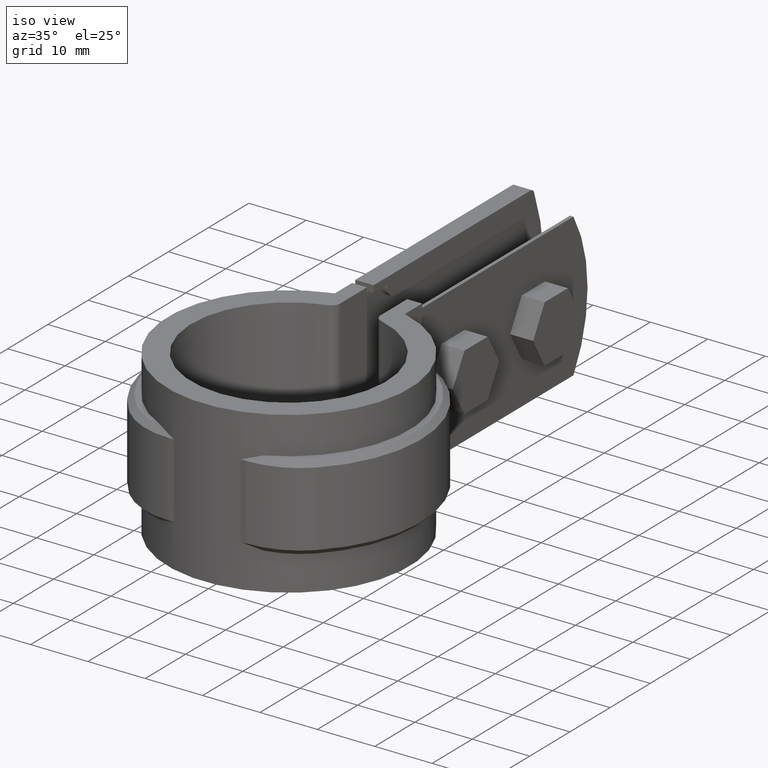
[diagram: clean part render]
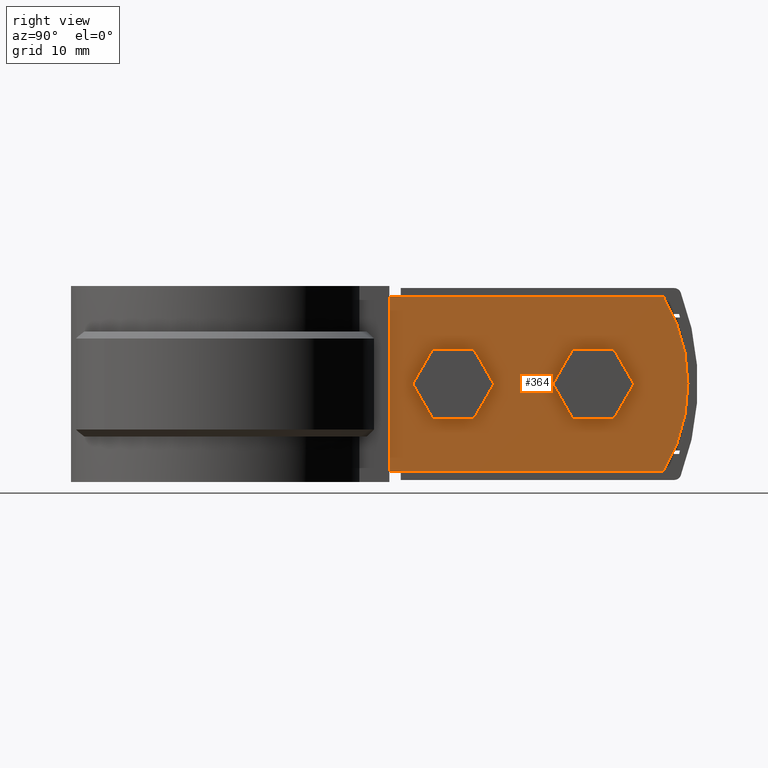
[diagram: tour spotlight — one face highlighted and labeled with its STEP entity id]
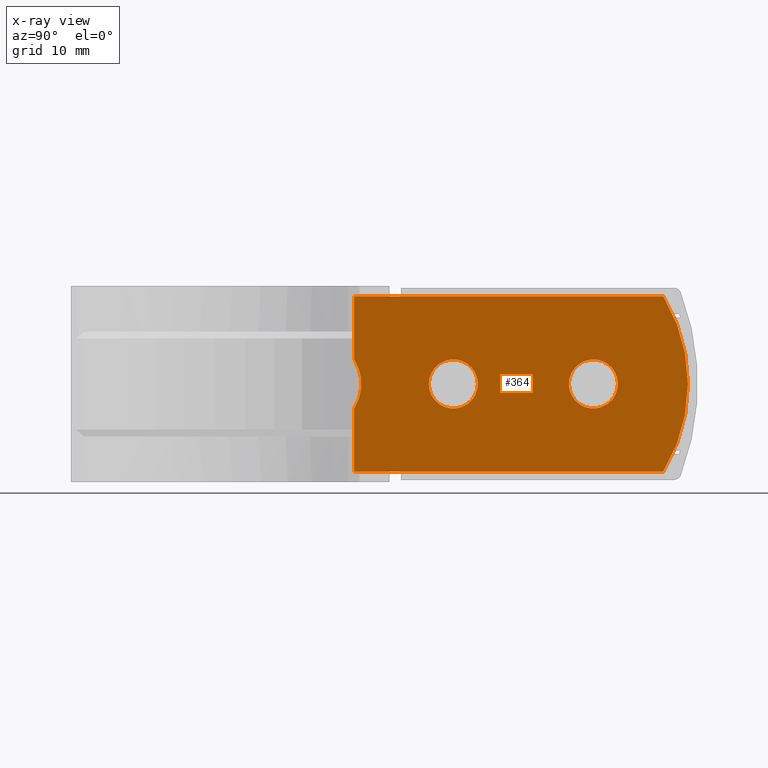
[diagram: x-ray of the same camera — body ghosted, this tour face saturated]
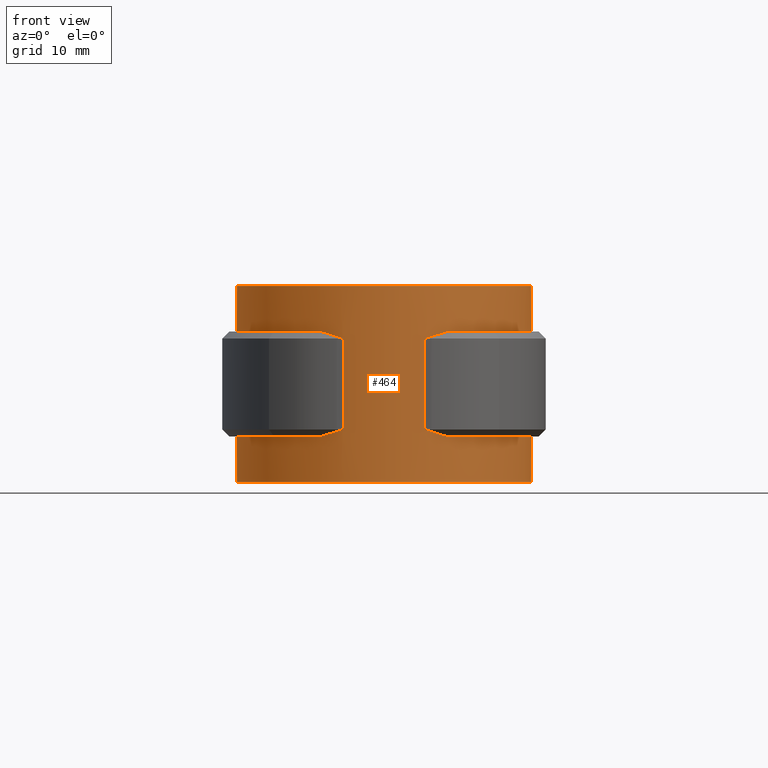
[diagram: tour spotlight — one face highlighted and labeled with its STEP entity id]
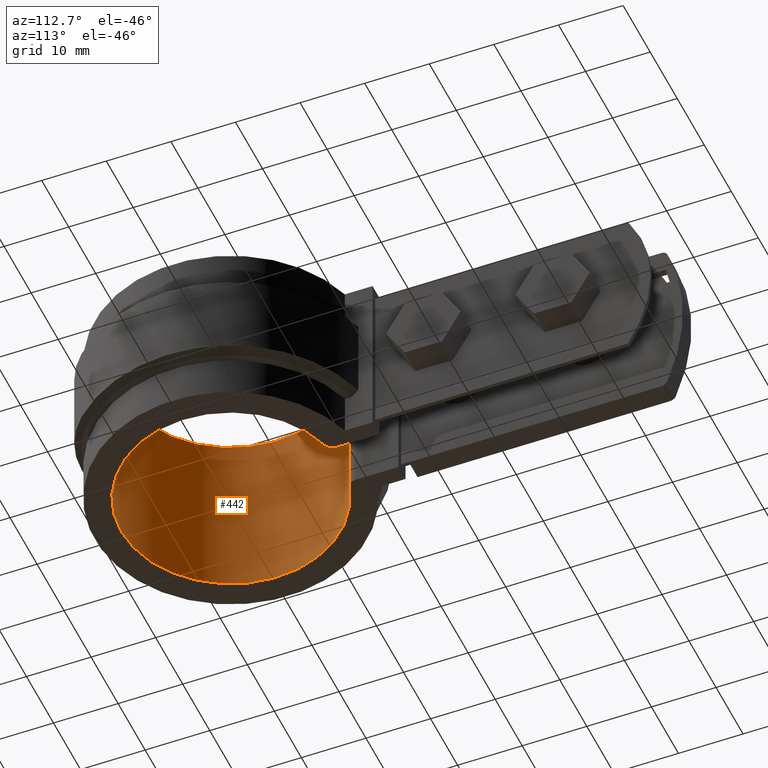
[diagram: tour spotlight — one face highlighted and labeled with its STEP entity id]
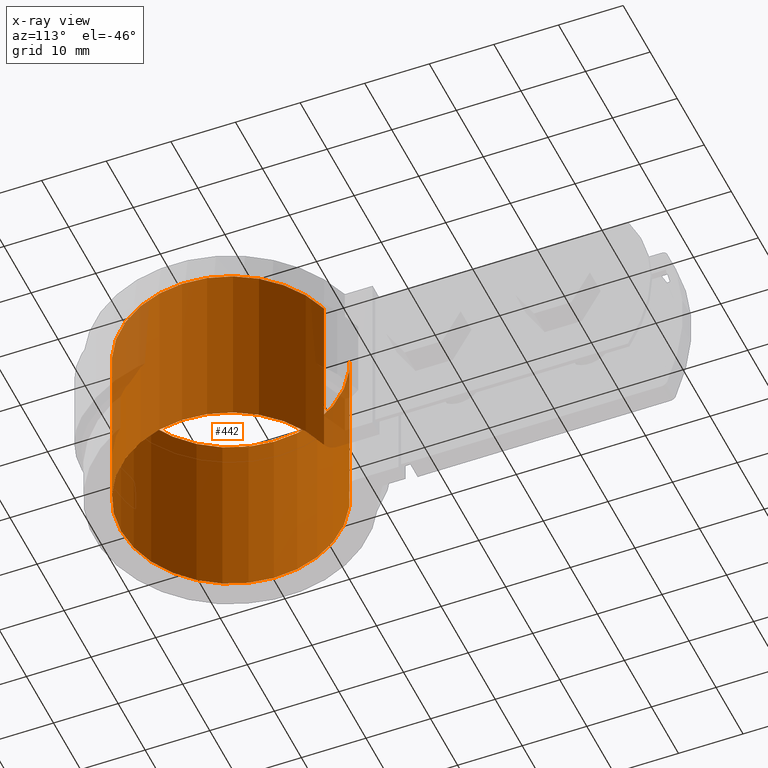
[diagram: x-ray of the same camera — body ghosted, this tour face saturated]
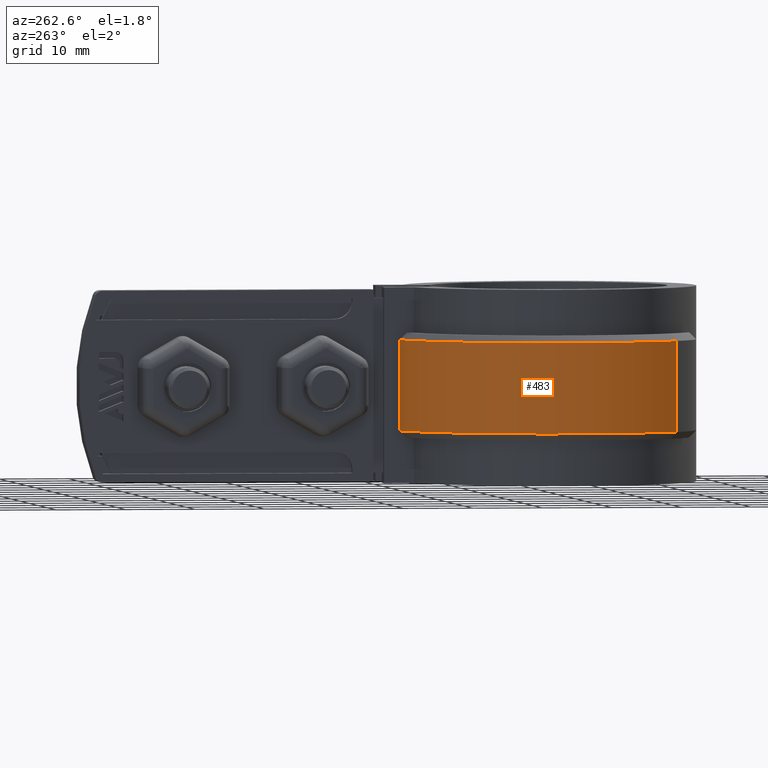
[diagram: tour spotlight — one face highlighted and labeled with its STEP entity id]
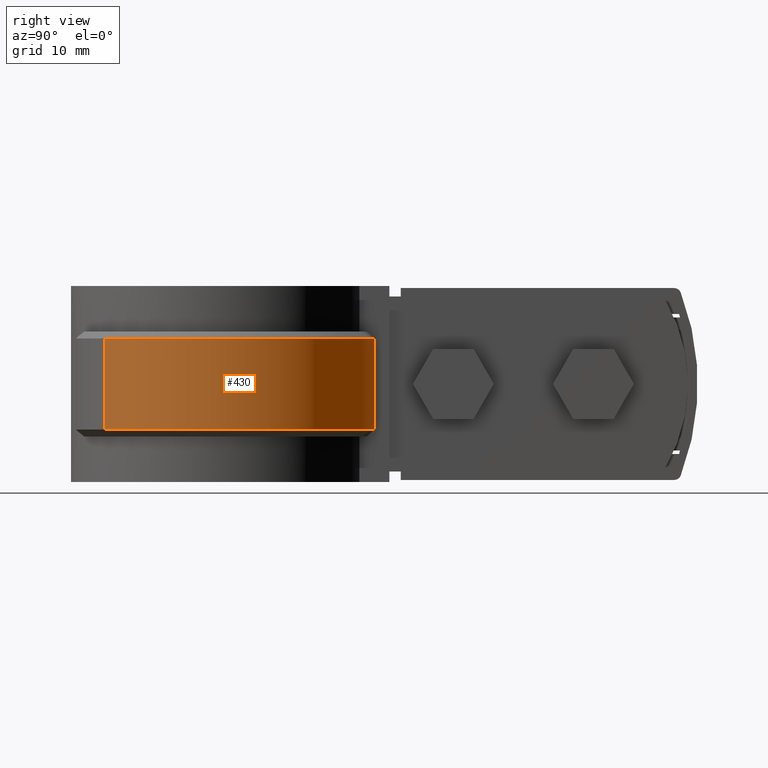
[diagram: tour spotlight — one face highlighted and labeled with its STEP entity id]
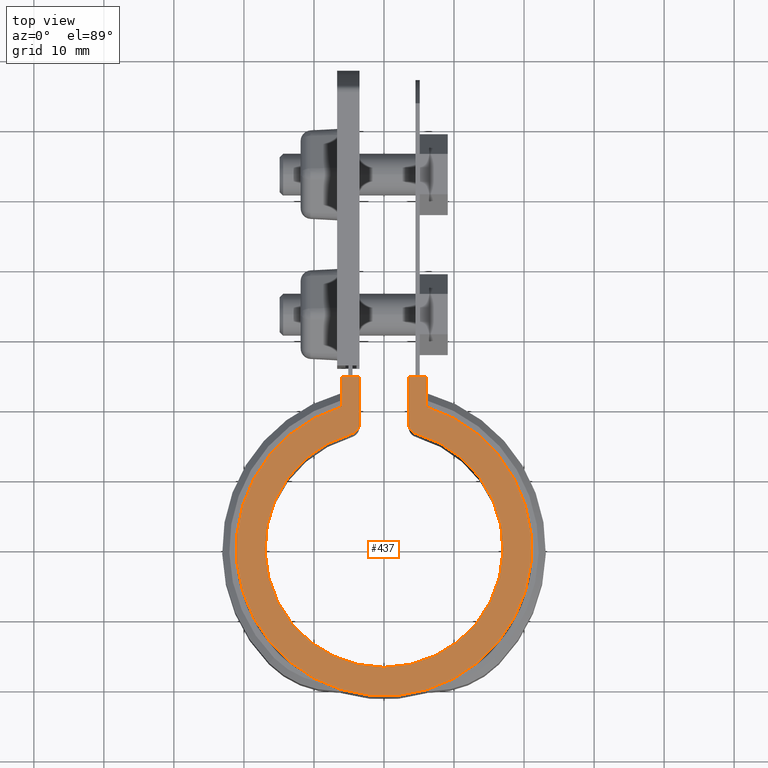
[diagram: tour spotlight — one face highlighted and labeled with its STEP entity id]
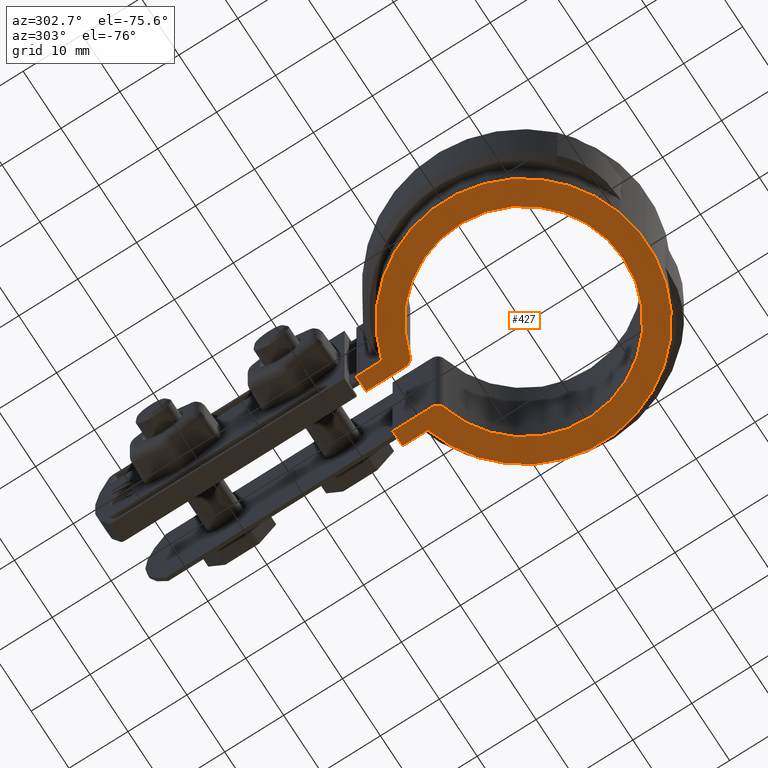
[diagram: tour spotlight — one face highlighted and labeled with its STEP entity id]
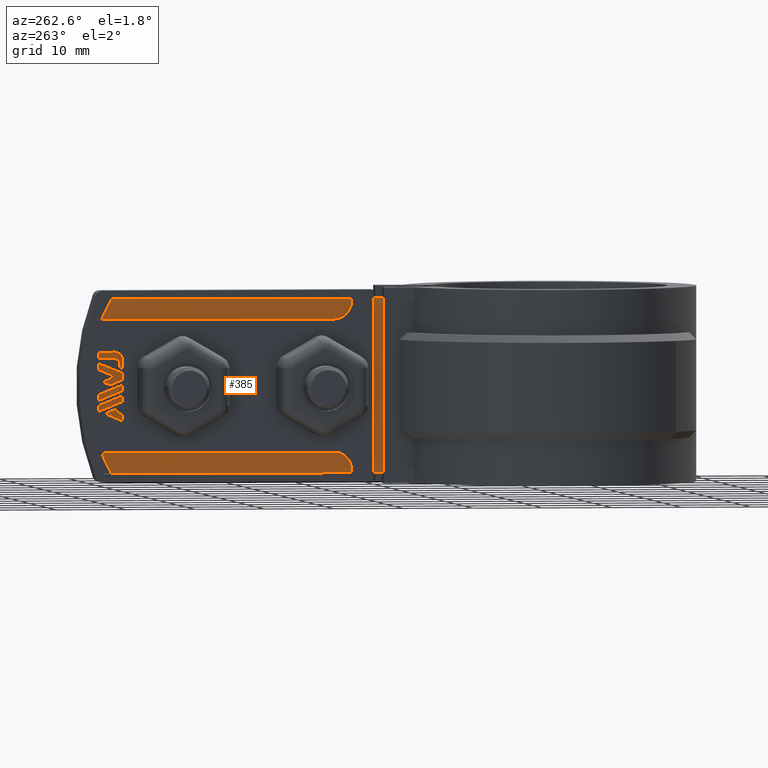
[diagram: tour spotlight — one face highlighted and labeled with its STEP entity id]
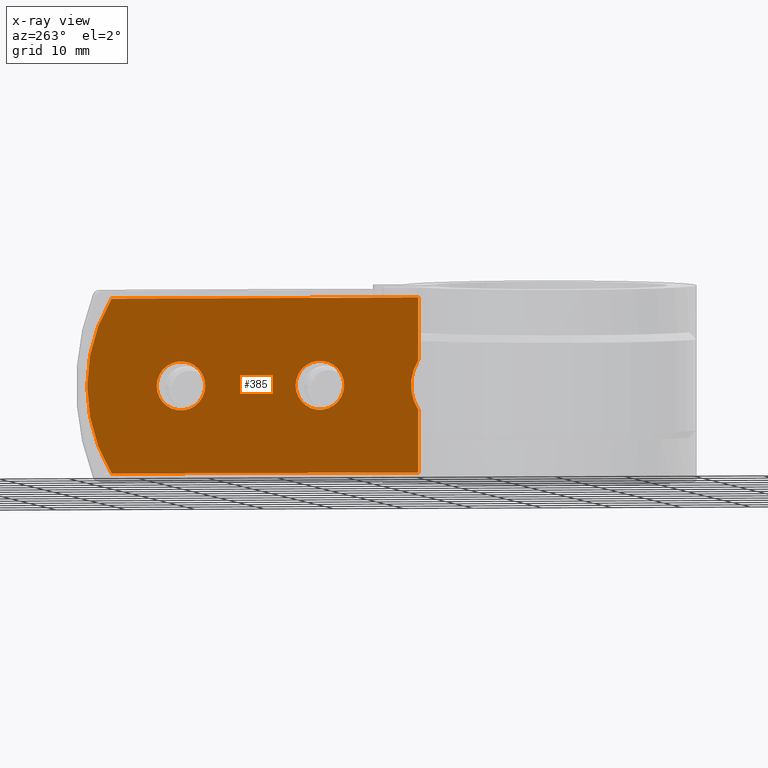
[diagram: x-ray of the same camera — body ghosted, this tour face saturated]
A machine part: a face-by-face anatomy tour. The part has 344 B-rep faces; the first image is the clean iso view, then the 8 largest visible faces are spotlighted one at a time (largest first), each with its STEP entity span.

Face 1 — right view, entity #364. An x-ray twin of the same camera follows (body ghosted, this face saturated) — the face is partly hidden behind the body. In plain terms, the highlighted planar face has unit normal (-1, 0, 0).
Definition (entity closure, byte-faithful):
#364 = ADVANCED_FACE( '', ( #710, #711, #712 ), #713, .F. );
#710 = FACE_OUTER_BOUND( '', #1450, .T. );
#711 = FACE_BOUND( '', #1451, .T. );
#712 = FACE_BOUND( '', #1452, .T. );
#713 = PLANE( '', #1453 );
#1450 = EDGE_LOOP( '', ( #2855, #2856, #2857, #2858, #2859, #2860 ) );
#1451 = EDGE_LOOP( '', ( #2861 ) );
#1452 = EDGE_LOOP( '', ( #2862 ) );
#1453 = AXIS2_PLACEMENT_3D( '', #2863, #2864, #2865 );
#2855 = ORIENTED_EDGE( '', *, *, #6604, .F. );
#2856 = ORIENTED_EDGE( '', *, *, #6605, .T. );
#2857 = ORIENTED_EDGE( '', *, *, #6606, .T. );
#2858 = ORIENTED_EDGE( '', *, *, #6607, .F. );
#2859 = ORIENTED_EDGE( '', *, *, #6608, .F. );
#2860 = ORIENTED_EDGE( '', *, *, #6609, .T. );
#2861 = ORIENTED_EDGE( '', *, *, #6610, .F. );
#2862 = ORIENTED_EDGE( '', *, *, #6611, .F. );
#2863 = CARTESIAN_POINT( '', ( 5.10000000000000, 19.4422220952236, 0.000000000000000 ) );
#2864 = DIRECTION( '', ( -1.00000000000000, 6.12303176911189E-017, 0.000000000000000 ) );
#2865 = DIRECTION( '', ( 0.000000000000000, 0.000000000000000, 1.00000000000000 ) );
#6604 = EDGE_CURVE( '', #7544, #7545, #7546, .T. );
#6605 = EDGE_CURVE( '', #7544, #7547, #7548, .T. );
#6606 = EDGE_CURVE( '', #7547, #7549, #7550, .T. );
#6607 = EDGE_CURVE( '', #7551, #7549, #7552, .T. );
#6608 = EDGE_CURVE( '', #7553, #7551, #7554, .F. );
#6609 = EDGE_CURVE( '', #7553, #7545, #7555, .T. );
#6610 = EDGE_CURVE( '', #7556, #7556, #7557, .F. );
#6611 = EDGE_CURVE( '', #7558, #7558, #7559, .F. );
#7544 = VERTEX_POINT( '', #9203 );
#7545 = VERTEX_POINT( '', #9204 );
#7546 = B_SPLINE_CURVE_WITH_KNOTS( '', 3, ( #9205, #9206, #9207, #9208, #9209, #9210, #9211, #9212, #9213, #9214, #9215, #9216, #9217, #9218, #9219, #9220 ), .UNSPECIFIED., .F., .F., ( 4, 2, 2, 2, 2, 2, 2, 4 ), ( 8.89289032550165E-017, 0.00184726520239946, 0.00277089780359915, 0.00369453040479884, 0.00461816300599853, 0.00554179560719821, 0.00646542820839790, 0.00738906080959759 ), .UNSPECIFIED. );
#7547 = VERTEX_POINT( '', #9221 );
#7548 = LINE( '', #9222, #9223 );
#7549 = VERTEX_POINT( '', #9224 );
#7550 = LINE( '', #9225, #9226 );
#7551 = VERTEX_POINT( '', #9227 );
#7552 = CIRCLE( '', #9228, 24.0000000000000 );
#7553 = VERTEX_POINT( '', #9229 );
#7554 = LINE( '', #9230, #9231 );
#7555 = LINE( '', #9232, #9233 );
#7556 = VERTEX_POINT( '', #9234 );
#7557 = CIRCLE( '', #9235, 3.50000000000000 );
#7558 = VERTEX_POINT( '', #9236 );
#7559 = CIRCLE( '', #9237, 3.50000000000000 );
#9203 = CARTESIAN_POINT( '', ( 5.09999999999961, 19.4422220952235, -16.0303286634312 ) );
#9204 = CARTESIAN_POINT( '', ( 5.10000000000000, 19.4422220952236, -8.96967133656906 ) );
#9205 = CARTESIAN_POINT( '', ( 5.10000000000000, 19.4422220952235, -16.0303286634310 ) );
#9206 = CARTESIAN_POINT( '', ( 5.10000000000000, 19.7801053416468, -15.5013357464436 ) );
#9207 = CARTESIAN_POINT( '', ( 5.10000000000003, 20.0328027913763, -14.9390013586115 ) );
#9208 = CARTESIAN_POINT( '', ( 5.10000000000003, 20.2940795166056, -14.0494051599813 ) );
#9209 = CARTESIAN_POINT( '', ( 5.10000000000001, 20.3614603303200, -13.7424787248678 ) );
#9210 = CARTESIAN_POINT( '', ( 5.10000000000000, 20.4512930233971, -13.1249243719470 ) );
#9211 = CARTESIAN_POINT( '', ( 5.09999999999998, 20.4739241329096, -12.8159474315860 ) );
#9212 = CARTESIAN_POINT( '', ( 5.09999999999998, 20.4745795553677, -12.1975936974691 ) );
#9213 = CARTESIAN_POINT( '', ( 5.10000000000000, 20.4525929326976, -11.8882168056869 ) );
#9214 = CARTESIAN_POINT( '', ( 5.10000000000000, 20.3637266687302, -11.2690606030455 ) );
#9215 = CARTESIAN_POINT( '', ( 5.10000000000001, 20.2971590065117, -10.9631409781846 ) );
#9216 = CARTESIAN_POINT( '', ( 5.10000000000001, 20.1236782689653, -10.3684305159894 ) );
#9217 = CARTESIAN_POINT( '', ( 5.10000000000000, 20.0165393108588, -10.0780053806239 ) );
#9218 = CARTESIAN_POINT( '', ( 5.10000000000000, 19.7606431259463, -9.51129425361363 ) );
#9219 = CARTESIAN_POINT( '', ( 5.10000000000000, 19.6111260462182, -9.23410881511582 ) );
#9220 = CARTESIAN_POINT( '', ( 5.10000000000000, 19.4422220952236, -8.96967133656907 ) );
#9221 = CARTESIAN_POINT( '', ( 5.10000000000000, 19.4422220952236, -25.0000000000000 ) );
#9222 = CARTESIAN_POINT( '', ( 5.10000000000000, 19.4422220952236, 0.000000000000000 ) );
#9223 = VECTOR( '', #12733, 1000.00000000000 );
#9224 = CARTESIAN_POINT( '', ( 5.10000000000000, 63.5921596934742, -25.0000000000000 ) );
#9225 = CARTESIAN_POINT( '', ( 5.10000000000000, 19.4422220952236, -25.0000000000000 ) );
#9226 = VECTOR( '', #12734, 1000.00000000000 );
#9227 = CARTESIAN_POINT( '', ( 5.10000000000000, 63.5921596934742, -1.08849965089404E-030 ) );
#9228 = AXIS2_PLACEMENT_3D( '', #12735, #12736, #12737 );
#9229 = CARTESIAN_POINT( '', ( 5.10000000000000, 19.4422220952236, 0.000000000000000 ) );
#9230 = CARTESIAN_POINT( '', ( 5.10000000000000, 19.4422220952236, 0.000000000000000 ) );
#9231 = VECTOR( '', #12738, 1000.00000000000 );
#9232 = CARTESIAN_POINT( '', ( 5.10000000000000, 19.4422220952236, 0.000000000000000 ) );
#9233 = VECTOR( '', #12739, 1000.00000000000 );
#9234 = CARTESIAN_POINT( '', ( 5.10000000000000, 50.1043584449263, -12.5000000000000 ) );
#9235 = AXIS2_PLACEMENT_3D( '', #12740, #12741, #12742 );
#9236 = CARTESIAN_POINT( '', ( 5.10000000000000, 30.1043584449263, -12.5000000000000 ) );
#9237 = AXIS2_PLACEMENT_3D( '', #12743, #12744, #12745 );
#12733 = DIRECTION( '', ( 0.000000000000000, 0.000000000000000, -1.00000000000000 ) );
#12734 = DIRECTION( '', ( 6.12303176911189E-017, 1.00000000000000, 0.000000000000000 ) );
#12735 = CARTESIAN_POINT( '', ( 5.09999999999999, 43.1043584449263, -12.5000000000000 ) );
#12736 = DIRECTION( '', ( -1.00000000000000, 6.12303176911189E-017, 0.000000000000000 ) );
#12737 = DIRECTION( '', ( -6.12303176911189E-017, -1.00000000000000, 0.000000000000000 ) );
#12738 = DIRECTION( '', ( -6.12303176911189E-017, -1.00000000000000, 0.000000000000000 ) );
#12739 = DIRECTION( '', ( 0.000000000000000, 0.000000000000000, -1.00000000000000 ) );
#12740 = CARTESIAN_POINT( '', ( 5.10000000000000, 53.6043584449263, -12.5000000000000 ) );
#12741 = DIRECTION( '', ( -1.00000000000000, 6.12303176911189E-017, 0.000000000000000 ) );
#12742 = DIRECTION( '', ( -6.12303176911189E-017, -1.00000000000000, 0.000000000000000 ) );
#12743 = CARTESIAN_POINT( '', ( 5.10000000000000, 33.6043584449263, -12.5000000000000 ) );
#12744 = DIRECTION( '', ( -1.00000000000000, 6.12303176911189E-017, 0.000000000000000 ) );
#12745 = DIRECTION( '', ( -6.12303176911189E-017, -1.00000000000000, 0.000000000000000 ) );

Face 2 — front view, entity #464. In plain terms, the highlighted cylindrical surface (partial cylindrical patch) has radius 21.095 mm, axis along (0, 0, -1).
Definition (entity closure, byte-faithful):
#464 = ADVANCED_FACE( '', ( #923 ), #924, .T. );
#923 = FACE_OUTER_BOUND( '', #1999, .T. );
#924 = CYLINDRICAL_SURFACE( '', #2000, 21.0950000000000 );
#1999 = EDGE_LOOP( '', ( #4397, #4398, #4399, #4400, #4401, #4402, #4403, #4404, #4405, #4406, #4407, #4408, #4409, #4410, #4411, #4412, #4413, #4414, #4415, #4416 ) );
#2000 = AXIS2_PLACEMENT_3D( '', #4417, #4418, #4419 );
#4397 = ORIENTED_EDGE( '', *, *, #6887, .F. );
#4398 = ORIENTED_EDGE( '', *, *, #6931, .T. );
#4399 = ORIENTED_EDGE( '', *, *, #6932, .T. );
#4400 = ORIENTED_EDGE( '', *, *, #6933, .F. );
#4401 = ORIENTED_EDGE( '', *, *, #6860, .T. );
#4402 = ORIENTED_EDGE( '', *, *, #6869, .T. );
#4403 = ORIENTED_EDGE( '', *, *, #6934, .T. );
#4404 = ORIENTED_EDGE( '', *, *, #6854, .F. );
#4405 = ORIENTED_EDGE( '', *, *, #6830, .T. );
#4406 = ORIENTED_EDGE( '', *, *, #6862, .T. );
#4407 = ORIENTED_EDGE( '', *, *, #6790, .F. );
#4408 = ORIENTED_EDGE( '', *, *, #6797, .T. );
#4409 = ORIENTED_EDGE( '', *, *, #6920, .T. );
#4410 = ORIENTED_EDGE( '', *, *, #6800, .T. );
#4411 = ORIENTED_EDGE( '', *, *, #6925, .T. );
#4412 = ORIENTED_EDGE( '', *, *, #6884, .T. );
#4413 = ORIENTED_EDGE( '', *, *, #6935, .T. );
#4414 = ORIENTED_EDGE( '', *, *, #6864, .T. );
#4415 = ORIENTED_EDGE( '', *, *, #6875, .F. );
#4416 = ORIENTED_EDGE( '', *, *, #6851, .F. );
#4417 = CARTESIAN_POINT( '', ( -4.33680868994202E-015, 0.000000000000000, -26.5000000000000 ) );
#4418 = DIRECTION( '', ( 0.000000000000000, 0.000000000000000, -1.00000000000000 ) );
#4419 = DIRECTION( '', ( -1.00000000000000, 6.50521303491303E-017, 0.000000000000000 ) );
#6790 = EDGE_CURVE( '', #7866, #7868, #7869, .T. );
#6797 = EDGE_CURVE( '', #7866, #7878, #7880, .T. );
#6800 = EDGE_CURVE( '', #7885, #7883, #7886, .T. );
#6830 = EDGE_CURVE( '', #7936, #7934, #7937, .T. );
#6851 = EDGE_CURVE( '', #7973, #7975, #7976, .T. );
#6854 = EDGE_CURVE( '', #7936, #7964, #7980, .T. );
#6860 = EDGE_CURVE( '', #7985, #7987, #7989, .F. );
#6862 = EDGE_CURVE( '', #7934, #7868, #7991, .T. );
#6864 = EDGE_CURVE( '', #7994, #7992, #7995, .T. );
#6869 = EDGE_CURVE( '', #7987, #8001, #8003, .T. );
#6875 = EDGE_CURVE( '', #7975, #7992, #8013, .T. );
#6884 = EDGE_CURVE( '', #8020, #8025, #8027, .T. );
#6887 = EDGE_CURVE( '', #8030, #7973, #8032, .T. );
#6920 = EDGE_CURVE( '', #7878, #7885, #8078, .F. );
#6925 = EDGE_CURVE( '', #7883, #8020, #8085, .T. );
#6931 = EDGE_CURVE( '', #8030, #8092, #8093, .T. );
#6932 = EDGE_CURVE( '', #8092, #8094, #8095, .T. );
#6933 = EDGE_CURVE( '', #7985, #8094, #8096, .T. );
#6934 = EDGE_CURVE( '', #8001, #7964, #8097, .T. );
#6935 = EDGE_CURVE( '', #8025, #7994, #8098, .T. );
#7866 = VERTEX_POINT( '', #10596 );
#7868 = VERTEX_POINT( '', #10598 );
#7869 = CIRCLE( '', #10599, 21.0950000000000 );
#7878 = VERTEX_POINT( '', #10611 );
#7880 = B_SPLINE_CURVE_WITH_KNOTS( '', 3, ( #10614, #10615, #10616, #10617 ), .UNSPECIFIED., .F., .F., ( 4, 4 ), ( 1.99304553643380E-017, 0.00253519593431982 ), .UNSPECIFIED. );
#7883 = VERTEX_POINT( '', #10621 );
#7885 = VERTEX_POINT( '', #10624 );
#7886 = LINE( '', #10625, #10626 );
#7934 = VERTEX_POINT( '', #10755 );
#7936 = VERTEX_POINT( '', #10758 );
#7937 = CIRCLE( '', #10759, 21.0950000000000 );
#7964 = VERTEX_POINT( '', #10800 );
#7973 = VERTEX_POINT( '', #10817 );
#7975 = VERTEX_POINT( '', #10820 );
#7976 = LINE( '', #10821, #10822 );
#7980 = LINE( '', #10828, #10829 );
#7985 = VERTEX_POINT( '', #10849 );
#7987 = VERTEX_POINT( '', #10852 );
#7989 = ELLIPSE( '', #10855, 29.8328350982604, 21.0950000000000 );
#7991 = LINE( '', #10860, #10861 );
#7992 = VERTEX_POINT( '', #10862 );
#7994 = VERTEX_POINT( '', #10865 );
#7995 = LINE( '', #10866, #10867 );
#8001 = VERTEX_POINT( '', #10878 );
#8003 = B_SPLINE_CURVE_WITH_KNOTS( '', 3, ( #10880, #10881, #10882, #10883 ), .UNSPECIFIED., .F., .F., ( 4, 4 ), ( 5.55382496713543E-018, 0.00253519593431982 ), .UNSPECIFIED. );
#8013 = CIRCLE( '', #10895, 21.0950000000000 );
#8020 = VERTEX_POINT( '', #10915 );
#8025 = VERTEX_POINT( '', #10922 );
#8027 = B_SPLINE_CURVE_WITH_KNOTS( '', 3, ( #10924, #10925, #10926, #10927 ), .UNSPECIFIED., .F., .F., ( 4, 4 ), ( 3.57622406134550E-018, 0.00253519593431980 ), .UNSPECIFIED. );
#8030 = VERTEX_POINT( '', #10930 );
#8032 = CIRCLE( '', #10932, 21.0950000000000 );
#8078 = ELLIPSE( '', #11154, 29.8328350982604, 21.0950000000000 );
#8085 = ELLIPSE( '', #11168, 29.8328350982604, 21.0950000000000 );
#8092 = VERTEX_POINT( '', #11203 );
#8093 = B_SPLINE_CURVE_WITH_KNOTS( '', 3, ( #11204, #11205, #11206, #11207 ), .UNSPECIFIED., .F., .F., ( 4, 4 ), ( 1.78600713055446E-017, 0.00253519593431984 ), .UNSPECIFIED. );
#8094 = VERTEX_POINT( '', #11208 );
#8095 = ELLIPSE( '', #11209, 29.8328350982604, 21.0950000000000 );
#8096 = LINE( '', #11210, #11211 );
#8097 = CIRCLE( '', #11212, 21.0950000000000 );
#8098 = CIRCLE( '', #11213, 21.0950000000000 );
#10596 = CARTESIAN_POINT( '', ( 9.00579582913146, -19.0760233404134, -20.0000000000000 ) );
#10598 = CARTESIAN_POINT( '', ( 6.09999999999997, 20.1937867919813, -20.0000000000000 ) );
#10599 = AXIS2_PLACEMENT_3D( '', #12943, #12944, #12945 );
#10611 = CARTESIAN_POINT( '', ( 6.74778667416212, -19.9866555481401, -19.2933444518599 ) );
#10614 = CARTESIAN_POINT( '', ( 9.00579582913147, -19.0760233404134, -20.0000000000000 ) );
#10615 = CARTESIAN_POINT( '', ( 8.26434868650766, -19.4260607389532, -19.7885017994963 ) );
#10616 = CARTESIAN_POINT( '', ( 7.51183228767404, -19.7287025956369, -19.5512974043631 ) );
#10617 = CARTESIAN_POINT( '', ( 6.74778667416213, -19.9866555481401, -19.2933444518599 ) );
#10621 = CARTESIAN_POINT( '', ( 5.80694627149242, -20.2800000000000, -6.00000000000000 ) );
#10624 = CARTESIAN_POINT( '', ( 5.80694627149242, -20.2800000000000, -19.0000000000000 ) );
#10625 = CARTESIAN_POINT( '', ( 5.80694627149242, -20.2800000000000, -26.5000000000000 ) );
#10626 = VECTOR( '', #12958, 1000.00000000000 );
#10755 = CARTESIAN_POINT( '', ( 6.09999999999997, 20.1937867919813, -26.5000000000000 ) );
#10758 = CARTESIAN_POINT( '', ( -6.10000000000003, 20.1937867919813, -26.5000000000000 ) );
#10759 = AXIS2_PLACEMENT_3D( '', #13000, #13001, #13002 );
#10800 = CARTESIAN_POINT( '', ( -6.10000000000003, 20.1937867919813, -20.0000000000000 ) );
#10817 = CARTESIAN_POINT( '', ( -6.10000000000003, 20.1937867919813, -5.00000000000000 ) );
#10820 = CARTESIAN_POINT( '', ( -6.10000000000003, 20.1937867919813, 1.50000000000000 ) );
#10821 = CARTESIAN_POINT( '', ( -6.10000000000003, 20.1937867919813, -26.5000000000000 ) );
#10822 = VECTOR( '', #13030, 1000.00000000000 );
#10828 = CARTESIAN_POINT( '', ( -6.10000000000003, 20.1937867919813, -26.5000000000000 ) );
#10829 = VECTOR( '', #13033, 1000.00000000000 );
#10849 = CARTESIAN_POINT( '', ( -5.80694627149243, -20.2800000000000, -19.0000000000000 ) );
#10852 = CARTESIAN_POINT( '', ( -6.74778667416212, -19.9866555481401, -19.2933444518599 ) );
#10855 = AXIS2_PLACEMENT_3D( '', #13038, #13039, #13040 );
#10860 = CARTESIAN_POINT( '', ( 6.09999999999997, 20.1937867919813, -26.5000000000000 ) );
#10861 = VECTOR( '', #13041, 1000.00000000000 );
#10862 = CARTESIAN_POINT( '', ( 6.09999999999997, 20.1937867919813, 1.50000000000000 ) );
#10865 = CARTESIAN_POINT( '', ( 6.09999999999997, 20.1937867919813, -5.00000000000000 ) );
#10866 = CARTESIAN_POINT( '', ( 6.09999999999997, 20.1937867919813, -26.5000000000000 ) );
#10867 = VECTOR( '', #13043, 1000.00000000000 );
#10878 = CARTESIAN_POINT( '', ( -9.00579582913147, -19.0760233404134, -20.0000000000000 ) );
#10880 = CARTESIAN_POINT( '', ( -6.74778667416213, -19.9866555481401, -19.2933444518599 ) );
#10881 = CARTESIAN_POINT( '', ( -7.51183228767405, -19.7287025956369, -19.5512974043631 ) );
#10882 = CARTESIAN_POINT( '', ( -8.26434868650767, -19.4260607389532, -19.7885017994963 ) );
#10883 = CARTESIAN_POINT( '', ( -9.00579582913148, -19.0760233404134, -20.0000000000000 ) );
#10895 = AXIS2_PLACEMENT_3D( '', #13060, #13061, #13062 );
#10915 = CARTESIAN_POINT( '', ( 6.74778667416212, -19.9866555481401, -5.70665554814011 ) );
#10922 = CARTESIAN_POINT( '', ( 9.00579582913145, -19.0760233404134, -4.99999999999999 ) );
#10924 = CARTESIAN_POINT( '', ( 6.74778667416212, -19.9866555481401, -5.70665554814010 ) );
#10925 = CARTESIAN_POINT( '', ( 7.51183228767404, -19.7287025956369, -5.44870259563688 ) );
#10926 = CARTESIAN_POINT( '', ( 8.26434868650766, -19.4260607389532, -5.21149820050369 ) );
#10927 = CARTESIAN_POINT( '', ( 9.00579582913147, -19.0760233404134, -4.99999999999999 ) );
#10930 = CARTESIAN_POINT( '', ( -9.00579582913147, -19.0760233404134, -4.99999999999999 ) );
#10932 = AXIS2_PLACEMENT_3D( '', #13082, #13083, #13084 );
#11154 = AXIS2_PLACEMENT_3D( '', #13118, #13119, #13120 );
#11168 = AXIS2_PLACEMENT_3D( '', #13126, #13127, #13128 );
#11203 = CARTESIAN_POINT( '', ( -6.74778667416212, -19.9866555481401, -5.70665554814011 ) );
#11204 = CARTESIAN_POINT( '', ( -9.00579582913148, -19.0760233404134, -4.99999999999999 ) );
#11205 = CARTESIAN_POINT( '', ( -8.26434868650767, -19.4260607389532, -5.21149820050369 ) );
#11206 = CARTESIAN_POINT( '', ( -7.51183228767405, -19.7287025956369, -5.44870259563688 ) );
#11207 = CARTESIAN_POINT( '', ( -6.74778667416212, -19.9866555481401, -5.70665554814011 ) );
#11208 = CARTESIAN_POINT( '', ( -5.80694627149243, -20.2800000000000, -6.00000000000000 ) );
#11209 = AXIS2_PLACEMENT_3D( '', #13132, #13133, #13134 );
#11210 = CARTESIAN_POINT( '', ( -5.80694627149243, -20.2800000000000, -26.5000000000000 ) );
#11211 = VECTOR( '', #13135, 1000.00000000000 );
#11212 = AXIS2_PLACEMENT_3D( '', #13136, #13137, #13138 );
#11213 = AXIS2_PLACEMENT_3D( '', #13139, #13140, #13141 );
#12943 = CARTESIAN_POINT( '', ( -4.33680868994202E-015, 0.000000000000000, -20.0000000000000 ) );
#12944 = DIRECTION( '', ( 0.000000000000000, 0.000000000000000, 1.00000000000000 ) );
#12945 = DIRECTION( '', ( 1.00000000000000, 0.000000000000000, 0.000000000000000 ) );
#12958 = DIRECTION( '', ( 0.000000000000000, 0.000000000000000, 1.00000000000000 ) );
#13000 = CARTESIAN_POINT( '', ( -4.33680868994202E-015, 0.000000000000000, -26.5000000000000 ) );
#13001 = DIRECTION( '', ( 0.000000000000000, 0.000000000000000, 1.00000000000000 ) );
#13002 = DIRECTION( '', ( 1.00000000000000, 0.000000000000000, 0.000000000000000 ) );
#13030 = DIRECTION( '', ( 0.000000000000000, 0.000000000000000, 1.00000000000000 ) );
#13033 = DIRECTION( '', ( 0.000000000000000, 0.000000000000000, 1.00000000000000 ) );
#13038 = CARTESIAN_POINT( '', ( -4.33680868994202E-015, 0.000000000000000, -39.2800000000000 ) );
#13039 = DIRECTION( '', ( 0.000000000000000, 0.707106781186548, 0.707106781186548 ) );
#13040 = DIRECTION( '', ( 0.000000000000000, -0.707106781186547, 0.707106781186547 ) );
#13041 = DIRECTION( '', ( 0.000000000000000, 0.000000000000000, 1.00000000000000 ) );
#13043 = DIRECTION( '', ( 0.000000000000000, 0.000000000000000, 1.00000000000000 ) );
#13060 = CARTESIAN_POINT( '', ( -4.33680868994202E-015, 0.000000000000000, 1.50000000000000 ) );
#13061 = DIRECTION( '', ( 0.000000000000000, 0.000000000000000, 1.00000000000000 ) );
#13062 = DIRECTION( '', ( 1.00000000000000, 0.000000000000000, 0.000000000000000 ) );
#13082 = CARTESIAN_POINT( '', ( -4.33680868994202E-015, 0.000000000000000, -5.00000000000000 ) );
#13083 = DIRECTION( '', ( 0.000000000000000, 0.000000000000000, -1.00000000000000 ) );
#13084 = DIRECTION( '', ( -1.00000000000000, 0.000000000000000, 0.000000000000000 ) );
#13118 = CARTESIAN_POINT( '', ( -4.33680868994202E-015, 0.000000000000000, -39.2800000000000 ) );
#13119 = DIRECTION( '', ( 0.000000000000000, 0.707106781186548, 0.707106781186548 ) );
#13120 = DIRECTION( '', ( 0.000000000000000, -0.707106781186547, 0.707106781186547 ) );
#13126 = CARTESIAN_POINT( '', ( -4.33680868994202E-015, 0.000000000000000, 14.2800000000000 ) );
#13127 = DIRECTION( '', ( 0.000000000000000, -0.707106781186548, 0.707106781186548 ) );
#13128 = DIRECTION( '', ( 0.000000000000000, 0.707106781186547, 0.707106781186547 ) );
#13132 = CARTESIAN_POINT( '', ( -4.33680868994202E-015, 0.000000000000000, 14.2800000000000 ) );
#13133 = DIRECTION( '', ( 0.000000000000000, -0.707106781186548, 0.707106781186548 ) );
#13134 = DIRECTION( '', ( 0.000000000000000, 0.707106781186547, 0.707106781186547 ) );
#13135 = DIRECTION( '', ( 0.000000000000000, 0.000000000000000, 1.00000000000000 ) );
#13136 = CARTESIAN_POINT( '', ( -4.33680868994202E-015, 0.000000000000000, -20.0000000000000 ) );
#13137 = DIRECTION( '', ( 0.000000000000000, 0.000000000000000, -1.00000000000000 ) );
#13138 = DIRECTION( '', ( -1.00000000000000, 0.000000000000000, 0.000000000000000 ) );
#13139 = CARTESIAN_POINT( '', ( -4.33680868994202E-015, 0.000000000000000, -5.00000000000000 ) );
#13140 = DIRECTION( '', ( 0.000000000000000, 0.000000000000000, 1.00000000000000 ) );
#13141 = DIRECTION( '', ( 1.00000000000000, 0.000000000000000, 0.000000000000000 ) );

Face 3 — auxiliary view, entity #442. An x-ray twin of the same camera follows (body ghosted, this face saturated) — the face is partly hidden behind the body. In plain terms, the highlighted cylindrical surface (partial cylindrical patch) has radius 17 mm, axis along (0, 0, -1).
Definition (entity closure, byte-faithful):
#442 = ADVANCED_FACE( '', ( #879 ), #880, .F. );
#879 = FACE_OUTER_BOUND( '', #1907, .T. );
#880 = CYLINDRICAL_SURFACE( '', #1908, 17.0000000000000 );
#1907 = EDGE_LOOP( '', ( #4005, #4006, #4007, #4008 ) );
#1908 = AXIS2_PLACEMENT_3D( '', #4009, #4010, #4011 );
#4005 = ORIENTED_EDGE( '', *, *, #6871, .T. );
#4006 = ORIENTED_EDGE( '', *, *, #6888, .T. );
#4007 = ORIENTED_EDGE( '', *, *, #6835, .F. );
#4008 = ORIENTED_EDGE( '', *, *, #6889, .T. );
#4009 = CARTESIAN_POINT( '', ( 0.000000000000000, 0.000000000000000, -74.7559907814303 ) );
#4010 = DIRECTION( '', ( 0.000000000000000, 0.000000000000000, -1.00000000000000 ) );
#4011 = DIRECTION( '', ( -1.00000000000000, 0.000000000000000, 0.000000000000000 ) );
#6835 = EDGE_CURVE( '', #7944, #7946, #7947, .T. );
#6871 = EDGE_CURVE( '', #8006, #8004, #8007, .T. );
#6888 = EDGE_CURVE( '', #8004, #7946, #8033, .T. );
#6889 = EDGE_CURVE( '', #7944, #8006, #8034, .T. );
#7944 = VERTEX_POINT( '', #10769 );
#7946 = VERTEX_POINT( '', #10771 );
#7947 = CIRCLE( '', #10772, 17.0000000000000 );
#8004 = VERTEX_POINT( '', #10884 );
#8006 = VERTEX_POINT( '', #10886 );
#8007 = CIRCLE( '', #10887, 17.0000000000000 );
#8033 = LINE( '', #10933, #10934 );
#8034 = LINE( '', #10935, #10936 );
#10769 = CARTESIAN_POINT( '', ( -4.59459459459459, 16.3673363902415, -26.5000000000000 ) );
#10771 = CARTESIAN_POINT( '', ( 4.59459459459460, 16.3673363902415, -26.5000000000000 ) );
#10772 = AXIS2_PLACEMENT_3D( '', #13009, #13010, #13011 );
#10884 = CARTESIAN_POINT( '', ( 4.59459459459459, 16.3673363902415, 1.50000000000000 ) );
#10886 = CARTESIAN_POINT( '', ( -4.59459459459459, 16.3673363902415, 1.50000000000000 ) );
#10887 = AXIS2_PLACEMENT_3D( '', #13052, #13053, #13054 );
#10933 = CARTESIAN_POINT( '', ( 4.59459459459460, 16.3673363902415, -74.7559907814303 ) );
#10934 = VECTOR( '', #13085, 1000.00000000000 );
#10935 = CARTESIAN_POINT( '', ( -4.59459459459459, 16.3673363902415, -74.7559907814303 ) );
#10936 = VECTOR( '', #13086, 1000.00000000000 );
#13009 = CARTESIAN_POINT( '', ( 0.000000000000000, 0.000000000000000, -26.5000000000000 ) );
#13010 = DIRECTION( '', ( 0.000000000000000, 0.000000000000000, 1.00000000000000 ) );
#13011 = DIRECTION( '', ( 1.00000000000000, 0.000000000000000, 0.000000000000000 ) );
#13052 = CARTESIAN_POINT( '', ( 0.000000000000000, 0.000000000000000, 1.50000000000000 ) );
#13053 = DIRECTION( '', ( 0.000000000000000, 0.000000000000000, 1.00000000000000 ) );
#13054 = DIRECTION( '', ( 1.00000000000000, 0.000000000000000, 0.000000000000000 ) );
#13085 = DIRECTION( '', ( 0.000000000000000, 0.000000000000000, -1.00000000000000 ) );
#13086 = DIRECTION( '', ( 0.000000000000000, 0.000000000000000, 1.00000000000000 ) );

Face 4 — auxiliary view, entity #483. In plain terms, the highlighted cylindrical surface (partial cylindrical patch) has radius 23.095 mm, axis along (0, 0, -1).
Definition (entity closure, byte-faithful):
#483 = ADVANCED_FACE( '', ( #962 ), #963, .T. );
#962 = FACE_OUTER_BOUND( '', #2086, .T. );
#963 = CYLINDRICAL_SURFACE( '', #2087, 23.0950000000000 );
#2086 = EDGE_LOOP( '', ( #4796, #4797, #4798, #4799 ) );
#2087 = AXIS2_PLACEMENT_3D( '', #4800, #4801, #4802 );
#4796 = ORIENTED_EDGE( '', *, *, #6848, .F. );
#4797 = ORIENTED_EDGE( '', *, *, #6917, .T. );
#4798 = ORIENTED_EDGE( '', *, *, #6761, .T. );
#4799 = ORIENTED_EDGE( '', *, *, #6914, .T. );
#4800 = CARTESIAN_POINT( '', ( -8.67361737988404E-016, -6.93889390390723E-015, -20.0000000000000 ) );
#4801 = DIRECTION( '', ( 0.000000000000000, 0.000000000000000, -1.00000000000000 ) );
#4802 = DIRECTION( '', ( 0.275275955036381, 0.961365252429485, 0.000000000000000 ) );
#6761 = EDGE_CURVE( '', #7812, #7813, #7814, .T. );
#6848 = EDGE_CURVE( '', #7967, #7969, #7970, .T. );
#6914 = EDGE_CURVE( '', #7813, #7969, #8072, .T. );
#6917 = EDGE_CURVE( '', #7967, #7812, #8075, .T. );
#7812 = VERTEX_POINT( '', #10351 );
#7813 = VERTEX_POINT( '', #10352 );
#7814 = LINE( '', #10353, #10354 );
#7967 = VERTEX_POINT( '', #10804 );
#7969 = VERTEX_POINT( '', #10809 );
#7970 = LINE( '', #10810, #10811 );
#8072 = CIRCLE( '', #11145, 23.0950000000000 );
#8075 = CIRCLE( '', #11149, 23.0950000000000 );
#10351 = CARTESIAN_POINT( '', ( -16.4128629004502, -16.2479831490258, -19.0000000000000 ) );
#10352 = CARTESIAN_POINT( '', ( -16.4128629004502, -16.2479831490258, -6.00000000000000 ) );
#10353 = CARTESIAN_POINT( '', ( -16.4128629004502, -16.2479831490258, -20.0000000000000 ) );
#10354 = VECTOR( '', #12907, 1000.00000000000 );
#10804 = CARTESIAN_POINT( '', ( -6.10000000000003, 22.2748518513592, -19.0000000000000 ) );
#10809 = CARTESIAN_POINT( '', ( -6.10000000000003, 22.2748518513592, -6.00000000000000 ) );
#10810 = CARTESIAN_POINT( '', ( -6.10000000000003, 22.2748518513592, -20.0000000000000 ) );
#10811 = VECTOR( '', #13028, 1000.00000000000 );
#11145 = AXIS2_PLACEMENT_3D( '', #13106, #13107, #13108 );
#11149 = AXIS2_PLACEMENT_3D( '', #13113, #13114, #13115 );
#12907 = DIRECTION( '', ( 0.000000000000000, 0.000000000000000, 1.00000000000000 ) );
#13028 = DIRECTION( '', ( 0.000000000000000, 0.000000000000000, 1.00000000000000 ) );
#13106 = CARTESIAN_POINT( '', ( -8.67361737988404E-016, -6.93889390390723E-015, -6.00000000000000 ) );
#13107 = DIRECTION( '', ( 0.000000000000000, 0.000000000000000, -1.00000000000000 ) );
#13108 = DIRECTION( '', ( -1.00000000000000, 0.000000000000000, 0.000000000000000 ) );
#13113 = CARTESIAN_POINT( '', ( -8.67361737988404E-016, -6.93889390390723E-015, -19.0000000000000 ) );
#13114 = DIRECTION( '', ( 0.000000000000000, 0.000000000000000, 1.00000000000000 ) );
#13115 = DIRECTION( '', ( 1.00000000000000, 0.000000000000000, 0.000000000000000 ) );

Face 5 — right view, entity #430. In plain terms, the highlighted cylindrical surface (partial cylindrical patch) has radius 23.095 mm, axis along (0, 0, -1).
Definition (entity closure, byte-faithful):
#430 = ADVANCED_FACE( '', ( #855 ), #856, .T. );
#855 = FACE_OUTER_BOUND( '', #1883, .T. );
#856 = CYLINDRICAL_SURFACE( '', #1884, 23.0950000000000 );
#1883 = EDGE_LOOP( '', ( #3902, #3903, #3904, #3905 ) );
#1884 = AXIS2_PLACEMENT_3D( '', #3906, #3907, #3908 );
#3902 = ORIENTED_EDGE( '', *, *, #6842, .T. );
#3903 = ORIENTED_EDGE( '', *, *, #6843, .T. );
#3904 = ORIENTED_EDGE( '', *, *, #6844, .F. );
#3905 = ORIENTED_EDGE( '', *, *, #6845, .T. );
#3906 = CARTESIAN_POINT( '', ( -8.67361737988404E-016, -6.93889390390723E-015, -20.0000000000000 ) );
#3907 = DIRECTION( '', ( 0.000000000000000, 0.000000000000000, -1.00000000000000 ) );
#3908 = DIRECTION( '', ( 0.275275955036381, 0.961365252429485, 0.000000000000000 ) );
#6842 = EDGE_CURVE( '', #7957, #7958, #7959, .T. );
#6843 = EDGE_CURVE( '', #7958, #7960, #7961, .T. );
#6844 = EDGE_CURVE( '', #7874, #7960, #7962, .T. );
#6845 = EDGE_CURVE( '', #7874, #7957, #7963, .T. );
#7874 = VERTEX_POINT( '', #10606 );
#7957 = VERTEX_POINT( '', #10791 );
#7958 = VERTEX_POINT( '', #10792 );
#7959 = LINE( '', #10793, #10794 );
#7960 = VERTEX_POINT( '', #10795 );
#7961 = CIRCLE( '', #10796, 23.0950000000000 );
#7962 = LINE( '', #10797, #10798 );
#7963 = CIRCLE( '', #10799, 23.0950000000000 );
#10606 = CARTESIAN_POINT( '', ( 16.4128629004502, -16.2479831490258, -19.0000000000000 ) );
#10791 = CARTESIAN_POINT( '', ( 6.09999999999997, 22.2748518513592, -19.0000000000000 ) );
#10792 = CARTESIAN_POINT( '', ( 6.09999999999997, 22.2748518513592, -6.00000000000000 ) );
#10793 = CARTESIAN_POINT( '', ( 6.09999999999997, 22.2748518513592, -20.0000000000000 ) );
#10794 = VECTOR( '', #13019, 1000.00000000000 );
#10795 = CARTESIAN_POINT( '', ( 16.4128629004502, -16.2479831490258, -6.00000000000000 ) );
#10796 = AXIS2_PLACEMENT_3D( '', #13020, #13021, #13022 );
#10797 = CARTESIAN_POINT( '', ( 16.4128629004502, -16.2479831490258, -20.0000000000000 ) );
#10798 = VECTOR( '', #13023, 1000.00000000000 );
#10799 = AXIS2_PLACEMENT_3D( '', #13024, #13025, #13026 );
#13019 = DIRECTION( '', ( 0.000000000000000, 0.000000000000000, 1.00000000000000 ) );
#13020 = CARTESIAN_POINT( '', ( -8.67361737988404E-016, -6.93889390390723E-015, -6.00000000000000 ) );
#13021 = DIRECTION( '', ( 0.000000000000000, 0.000000000000000, -1.00000000000000 ) );
#13022 = DIRECTION( '', ( -1.00000000000000, 0.000000000000000, 0.000000000000000 ) );
#13023 = DIRECTION( '', ( 0.000000000000000, 0.000000000000000, 1.00000000000000 ) );
#13024 = CARTESIAN_POINT( '', ( -8.67361737988404E-016, -6.93889390390723E-015, -19.0000000000000 ) );
#13025 = DIRECTION( '', ( 0.000000000000000, 0.000000000000000, 1.00000000000000 ) );
#13026 = DIRECTION( '', ( 1.00000000000000, 0.000000000000000, 0.000000000000000 ) );

Face 6 — top view, entity #437. In plain terms, the highlighted planar face has unit normal (0, 0, 1).
Definition (entity closure, byte-faithful):
#437 = ADVANCED_FACE( '', ( #869 ), #870, .T. );
#869 = FACE_OUTER_BOUND( '', #1897, .T. );
#870 = PLANE( '', #1898 );
#1897 = EDGE_LOOP( '', ( #3963, #3964, #3965, #3966, #3967, #3968, #3969, #3970, #3971, #3972 ) );
#1898 = AXIS2_PLACEMENT_3D( '', #3973, #3974, #3975 );
#3963 = ORIENTED_EDGE( '', *, *, #6729, .T. );
#3964 = ORIENTED_EDGE( '', *, *, #6838, .T. );
#3965 = ORIENTED_EDGE( '', *, *, #6870, .T. );
#3966 = ORIENTED_EDGE( '', *, *, #6871, .F. );
#3967 = ORIENTED_EDGE( '', *, *, #6872, .T. );
#3968 = ORIENTED_EDGE( '', *, *, #6873, .T. );
#3969 = ORIENTED_EDGE( '', *, *, #6874, .T. );
#3970 = ORIENTED_EDGE( '', *, *, #6852, .T. );
#3971 = ORIENTED_EDGE( '', *, *, #6875, .T. );
#3972 = ORIENTED_EDGE( '', *, *, #6863, .T. );
#3973 = CARTESIAN_POINT( '', ( -4.33680868994202E-015, 0.000000000000000, 1.50000000000000 ) );
#3974 = DIRECTION( '', ( 0.000000000000000, 0.000000000000000, 1.00000000000000 ) );
#3975 = DIRECTION( '', ( 1.00000000000000, 0.000000000000000, 0.000000000000000 ) );
#6729 = EDGE_CURVE( '', #7751, #7749, #7752, .T. );
#6838 = EDGE_CURVE( '', #7749, #7949, #7951, .T. );
#6852 = EDGE_CURVE( '', #7977, #7975, #7978, .T. );
#6863 = EDGE_CURVE( '', #7992, #7751, #7993, .T. );
#6870 = EDGE_CURVE( '', #7949, #8004, #8005, .T. );
#6871 = EDGE_CURVE( '', #8006, #8004, #8007, .T. );
#6872 = EDGE_CURVE( '', #8006, #8008, #8009, .T. );
#6873 = EDGE_CURVE( '', #8008, #8010, #8011, .T. );
#6874 = EDGE_CURVE( '', #8010, #7977, #8012, .T. );
#6875 = EDGE_CURVE( '', #7975, #7992, #8013, .T. );
#7749 = VERTEX_POINT( '', #10075 );
#7751 = VERTEX_POINT( '', #10078 );
#7752 = LINE( '', #10079, #10080 );
#7949 = VERTEX_POINT( '', #10774 );
#7951 = LINE( '', #10777, #10778 );
#7975 = VERTEX_POINT( '', #10820 );
#7977 = VERTEX_POINT( '', #10823 );
#7978 = LINE( '', #10824, #10825 );
#7992 = VERTEX_POINT( '', #10862 );
#7993 = LINE( '', #10863, #10864 );
#8004 = VERTEX_POINT( '', #10884 );
#8005 = CIRCLE( '', #10885, 1.50000000000000 );
#8006 = VERTEX_POINT( '', #10886 );
#8007 = CIRCLE( '', #10887, 17.0000000000000 );
#8008 = VERTEX_POINT( '', #10888 );
#8009 = CIRCLE( '', #10889, 1.50000000000000 );
#8010 = VERTEX_POINT( '', #10890 );
#8011 = LINE( '', #10891, #10892 );
#8012 = LINE( '', #10893, #10894 );
#8013 = CIRCLE( '', #10895, 21.0950000000000 );
#10075 = CARTESIAN_POINT( '', ( 3.50000000000000, 24.4800000000000, 1.50000000000000 ) );
#10078 = CARTESIAN_POINT( '', ( 6.09999999999997, 24.4800000000000, 1.50000000000000 ) );
#10079 = CARTESIAN_POINT( '', ( -4.33680868994202E-015, 24.4800000000000, 1.50000000000000 ) );
#10080 = VECTOR( '', #12881, 1000.00000000000 );
#10774 = CARTESIAN_POINT( '', ( 3.50000000000000, 17.8115131305569, 1.50000000000000 ) );
#10777 = CARTESIAN_POINT( '', ( 3.50000000000000, -2.12503625807159E-016, 1.50000000000000 ) );
#10778 = VECTOR( '', #13016, 1000.00000000000 );
#10820 = CARTESIAN_POINT( '', ( -6.10000000000003, 20.1937867919813, 1.50000000000000 ) );
#10823 = CARTESIAN_POINT( '', ( -6.10000000000003, 24.4800000000000, 1.50000000000000 ) );
#10824 = CARTESIAN_POINT( '', ( -6.10000000000003, 3.96817995129697E-016, 1.50000000000000 ) );
#10825 = VECTOR( '', #13031, 1000.00000000000 );
#10862 = CARTESIAN_POINT( '', ( 6.09999999999997, 20.1937867919813, 1.50000000000000 ) );
#10863 = CARTESIAN_POINT( '', ( 6.09999999999997, -3.96817995129693E-016, 1.50000000000000 ) );
#10864 = VECTOR( '', #13042, 1000.00000000000 );
#10884 = CARTESIAN_POINT( '', ( 4.59459459459459, 16.3673363902415, 1.50000000000000 ) );
#10885 = AXIS2_PLACEMENT_3D( '', #13049, #13050, #13051 );
#10886 = CARTESIAN_POINT( '', ( -4.59459459459459, 16.3673363902415, 1.50000000000000 ) );
#10887 = AXIS2_PLACEMENT_3D( '', #13052, #13053, #13054 );
#10888 = CARTESIAN_POINT( '', ( -3.49999999999999, 17.8115131305569, 1.50000000000000 ) );
#10889 = AXIS2_PLACEMENT_3D( '', #13055, #13056, #13057 );
#10890 = CARTESIAN_POINT( '', ( -3.49999999999999, 24.4800000000000, 1.50000000000000 ) );
#10891 = CARTESIAN_POINT( '', ( -3.49999999999999, 2.12503625807158E-016, 1.50000000000000 ) );
#10892 = VECTOR( '', #13058, 1000.00000000000 );
#10893 = CARTESIAN_POINT( '', ( -4.33680868994202E-015, 24.4800000000000, 1.50000000000000 ) );
#10894 = VECTOR( '', #13059, 1000.00000000000 );
#10895 = AXIS2_PLACEMENT_3D( '', #13060, #13061, #13062 );
#12881 = DIRECTION( '', ( -1.00000000000000, -9.10441983789083E-159, 0.000000000000000 ) );
#13016 = DIRECTION( '', ( -6.07153216591882E-017, -1.00000000000000, 0.000000000000000 ) );
#13031 = DIRECTION( '', ( -6.50521303491303E-017, -1.00000000000000, 0.000000000000000 ) );
#13042 = DIRECTION( '', ( 6.50521303491303E-017, 1.00000000000000, 0.000000000000000 ) );
#13049 = CARTESIAN_POINT( '', ( 5.00000000000000, 17.8115131305569, 1.50000000000000 ) );
#13050 = DIRECTION( '', ( 0.000000000000000, 0.000000000000000, 1.00000000000000 ) );
#13051 = DIRECTION( '', ( 1.00000000000000, 0.000000000000000, 0.000000000000000 ) );
#13052 = CARTESIAN_POINT( '', ( 0.000000000000000, 0.000000000000000, 1.50000000000000 ) );
#13053 = DIRECTION( '', ( 0.000000000000000, 0.000000000000000, 1.00000000000000 ) );
#13054 = DIRECTION( '', ( 1.00000000000000, 0.000000000000000, 0.000000000000000 ) );
#13055 = CARTESIAN_POINT( '', ( -4.99999999999999, 17.8115131305569, 1.50000000000000 ) );
#13056 = DIRECTION( '', ( 0.000000000000000, 0.000000000000000, 1.00000000000000 ) );
#13057 = DIRECTION( '', ( 1.00000000000000, 0.000000000000000, 0.000000000000000 ) );
#13058 = DIRECTION( '', ( 6.07153216591882E-017, 1.00000000000000, 0.000000000000000 ) );
#13059 = DIRECTION( '', ( -1.00000000000000, -9.10441983789083E-159, 0.000000000000000 ) );
#13060 = CARTESIAN_POINT( '', ( -4.33680868994202E-015, 0.000000000000000, 1.50000000000000 ) );
#13061 = DIRECTION( '', ( 0.000000000000000, 0.000000000000000, 1.00000000000000 ) );
#13062 = DIRECTION( '', ( 1.00000000000000, 0.000000000000000, 0.000000000000000 ) );

Face 7 — auxiliary view, entity #427. In plain terms, the highlighted planar face has unit normal (0, 0, 1).
Definition (entity closure, byte-faithful):
#427 = ADVANCED_FACE( '', ( #849 ), #850, .F. );
#849 = FACE_OUTER_BOUND( '', #1877, .T. );
#850 = PLANE( '', #1878 );
#1877 = EDGE_LOOP( '', ( #3875, #3876, #3877, #3878, #3879, #3880, #3881, #3882, #3883, #3884 ) );
#1878 = AXIS2_PLACEMENT_3D( '', #3885, #3886, #3887 );
#3875 = ORIENTED_EDGE( '', *, *, #6828, .F. );
#3876 = ORIENTED_EDGE( '', *, *, #6731, .F. );
#3877 = ORIENTED_EDGE( '', *, *, #6829, .F. );
#3878 = ORIENTED_EDGE( '', *, *, #6830, .F. );
#3879 = ORIENTED_EDGE( '', *, *, #6831, .F. );
#3880 = ORIENTED_EDGE( '', *, *, #6832, .F. );
#3881 = ORIENTED_EDGE( '', *, *, #6833, .F. );
#3882 = ORIENTED_EDGE( '', *, *, #6834, .T. );
#3883 = ORIENTED_EDGE( '', *, *, #6835, .T. );
#3884 = ORIENTED_EDGE( '', *, *, #6836, .T. );
#3885 = CARTESIAN_POINT( '', ( -4.33680868994202E-015, 0.000000000000000, -26.5000000000000 ) );
#3886 = DIRECTION( '', ( 0.000000000000000, 0.000000000000000, 1.00000000000000 ) );
#3887 = DIRECTION( '', ( 1.00000000000000, 0.000000000000000, 0.000000000000000 ) );
#6731 = EDGE_CURVE( '', #7753, #7748, #7755, .F. );
#6828 = EDGE_CURVE( '', #7748, #7932, #7933, .F. );
#6829 = EDGE_CURVE( '', #7934, #7753, #7935, .F. );
#6830 = EDGE_CURVE( '', #7936, #7934, #7937, .T. );
#6831 = EDGE_CURVE( '', #7938, #7936, #7939, .F. );
#6832 = EDGE_CURVE( '', #7940, #7938, #7941, .F. );
#6833 = EDGE_CURVE( '', #7942, #7940, #7943, .F. );
#6834 = EDGE_CURVE( '', #7942, #7944, #7945, .F. );
#6835 = EDGE_CURVE( '', #7944, #7946, #7947, .T. );
#6836 = EDGE_CURVE( '', #7946, #7932, #7948, .F. );
#7748 = VERTEX_POINT( '', #10074 );
#7753 = VERTEX_POINT( '', #10081 );
#7755 = LINE( '', #10084, #10085 );
#7932 = VERTEX_POINT( '', #10752 );
#7933 = LINE( '', #10753, #10754 );
#7934 = VERTEX_POINT( '', #10755 );
#7935 = LINE( '', #10756, #10757 );
#7936 = VERTEX_POINT( '', #10758 );
#7937 = CIRCLE( '', #10759, 21.0950000000000 );
#7938 = VERTEX_POINT( '', #10760 );
#7939 = LINE( '', #10761, #10762 );
#7940 = VERTEX_POINT( '', #10763 );
#7941 = LINE( '', #10764, #10765 );
#7942 = VERTEX_POINT( '', #10766 );
#7943 = LINE( '', #10767, #10768 );
#7944 = VERTEX_POINT( '', #10769 );
#7945 = CIRCLE( '', #10770, 1.50000000000000 );
#7946 = VERTEX_POINT( '', #10771 );
#7947 = CIRCLE( '', #10772, 17.0000000000000 );
#7948 = CIRCLE( '', #10773, 1.50000000000000 );
#10074 = CARTESIAN_POINT( '', ( 3.50000000000000, 24.4800000000000, -26.5000000000000 ) );
#10081 = CARTESIAN_POINT( '', ( 6.09999999999997, 24.4800000000000, -26.5000000000000 ) );
#10084 = CARTESIAN_POINT( '', ( 6.09999999999996, 24.4800000000000, -26.5000000000000 ) );
#10085 = VECTOR( '', #12883, 1000.00000000000 );
#10752 = CARTESIAN_POINT( '', ( 3.50000000000000, 17.8115131305569, -26.5000000000000 ) );
#10753 = CARTESIAN_POINT( '', ( 3.50000000000000, 24.4800000000000, -26.5000000000000 ) );
#10754 = VECTOR( '', #12998, 1000.00000000000 );
#10755 = CARTESIAN_POINT( '', ( 6.09999999999997, 20.1937867919813, -26.5000000000000 ) );
#10756 = CARTESIAN_POINT( '', ( 6.09999999999997, 20.1937867919813, -26.5000000000000 ) );
#10757 = VECTOR( '', #12999, 1000.00000000000 );
#10758 = CARTESIAN_POINT( '', ( -6.10000000000003, 20.1937867919813, -26.5000000000000 ) );
#10759 = AXIS2_PLACEMENT_3D( '', #13000, #13001, #13002 );
#10760 = CARTESIAN_POINT( '', ( -6.10000000000003, 24.4800000000000, -26.5000000000000 ) );
#10761 = CARTESIAN_POINT( '', ( -6.10000000000003, 24.4800000000000, -26.5000000000000 ) );
#10762 = VECTOR( '', #13003, 1000.00000000000 );
#10763 = CARTESIAN_POINT( '', ( -3.49999999999999, 24.4800000000000, -26.5000000000000 ) );
#10764 = CARTESIAN_POINT( '', ( -5.10000000000000, 24.4800000000000, -26.5000000000000 ) );
#10765 = VECTOR( '', #13004, 1000.00000000000 );
#10766 = CARTESIAN_POINT( '', ( -3.49999999999999, 17.8115131305569, -26.5000000000000 ) );
#10767 = CARTESIAN_POINT( '', ( -3.49999999999999, 16.6306952650814, -26.5000000000000 ) );
#10768 = VECTOR( '', #13005, 1000.00000000000 );
#10769 = CARTESIAN_POINT( '', ( -4.59459459459459, 16.3673363902415, -26.5000000000000 ) );
#10770 = AXIS2_PLACEMENT_3D( '', #13006, #13007, #13008 );
#10771 = CARTESIAN_POINT( '', ( 4.59459459459460, 16.3673363902415, -26.5000000000000 ) );
#10772 = AXIS2_PLACEMENT_3D( '', #13009, #13010, #13011 );
#10773 = AXIS2_PLACEMENT_3D( '', #13012, #13013, #13014 );
#12883 = DIRECTION( '', ( 1.00000000000000, 9.10441983789083E-159, 0.000000000000000 ) );
#12998 = DIRECTION( '', ( 6.07153216591882E-017, 1.00000000000000, 0.000000000000000 ) );
#12999 = DIRECTION( '', ( -6.50521303491303E-017, -1.00000000000000, 0.000000000000000 ) );
#13000 = CARTESIAN_POINT( '', ( -4.33680868994202E-015, 0.000000000000000, -26.5000000000000 ) );
#13001 = DIRECTION( '', ( 0.000000000000000, 0.000000000000000, 1.00000000000000 ) );
#13002 = DIRECTION( '', ( 1.00000000000000, 0.000000000000000, 0.000000000000000 ) );
#13003 = DIRECTION( '', ( 6.50521303491303E-017, 1.00000000000000, 0.000000000000000 ) );
#13004 = DIRECTION( '', ( 1.00000000000000, 9.10441983789083E-159, 0.000000000000000 ) );
#13005 = DIRECTION( '', ( -6.07153216591882E-017, -1.00000000000000, 0.000000000000000 ) );
#13006 = CARTESIAN_POINT( '', ( -4.99999999999999, 17.8115131305569, -26.5000000000000 ) );
#13007 = DIRECTION( '', ( 0.000000000000000, 0.000000000000000, 1.00000000000000 ) );
#13008 = DIRECTION( '', ( 1.00000000000000, 0.000000000000000, 0.000000000000000 ) );
#13009 = CARTESIAN_POINT( '', ( 0.000000000000000, 0.000000000000000, -26.5000000000000 ) );
#13010 = DIRECTION( '', ( 0.000000000000000, 0.000000000000000, 1.00000000000000 ) );
#13011 = DIRECTION( '', ( 1.00000000000000, 0.000000000000000, 0.000000000000000 ) );
#13012 = CARTESIAN_POINT( '', ( 5.00000000000000, 17.8115131305569, -26.5000000000000 ) );
#13013 = DIRECTION( '', ( 0.000000000000000, 0.000000000000000, 1.00000000000000 ) );
#13014 = DIRECTION( '', ( 1.00000000000000, 0.000000000000000, 0.000000000000000 ) );

Face 8 — auxiliary view, entity #385. An x-ray twin of the same camera follows (body ghosted, this face saturated) — the face is partly hidden behind the body. In plain terms, the highlighted planar face has unit normal (1, -0, 0).
Definition (entity closure, byte-faithful):
#385 = ADVANCED_FACE( '', ( #757, #758, #759 ), #760, .F. );
#757 = FACE_OUTER_BOUND( '', #1593, .T. );
#758 = FACE_BOUND( '', #1594, .T. );
#759 = FACE_BOUND( '', #1595, .T. );
#760 = PLANE( '', #1596 );
#1593 = EDGE_LOOP( '', ( #3354, #3355, #3356, #3357, #3358, #3359 ) );
#1594 = EDGE_LOOP( '', ( #3360 ) );
#1595 = EDGE_LOOP( '', ( #3361 ) );
#1596 = AXIS2_PLACEMENT_3D( '', #3362, #3363, #3364 );
#3354 = ORIENTED_EDGE( '', *, *, #6632, .F. );
#3355 = ORIENTED_EDGE( '', *, *, #6700, .F. );
#3356 = ORIENTED_EDGE( '', *, *, #6703, .F. );
#3357 = ORIENTED_EDGE( '', *, *, #6704, .F. );
#3358 = ORIENTED_EDGE( '', *, *, #6678, .T. );
#3359 = ORIENTED_EDGE( '', *, *, #6705, .F. );
#3360 = ORIENTED_EDGE( '', *, *, #6706, .F. );
#3361 = ORIENTED_EDGE( '', *, *, #6698, .F. );
#3362 = CARTESIAN_POINT( '', ( -5.10000000000000, 67.1043584449263, 0.000000000000000 ) );
#3363 = DIRECTION( '', ( 1.00000000000000, -6.12303176911189E-017, 0.000000000000000 ) );
#3364 = DIRECTION( '', ( 0.000000000000000, 0.000000000000000, 1.00000000000000 ) );
#6632 = EDGE_CURVE( '', #7592, #7594, #7595, .T. );
#6678 = EDGE_CURVE( '', #7679, #7677, #7680, .T. );
#6698 = EDGE_CURVE( '', #7709, #7709, #7710, .F. );
#6700 = EDGE_CURVE( '', #7711, #7592, #7713, .T. );
#6703 = EDGE_CURVE( '', #7716, #7711, #7717, .F. );
#6704 = EDGE_CURVE( '', #7679, #7716, #7718, .T. );
#6705 = EDGE_CURVE( '', #7594, #7677, #7719, .T. );
#6706 = EDGE_CURVE( '', #7720, #7720, #7721, .F. );
#7592 = VERTEX_POINT( '', #9409 );
#7594 = VERTEX_POINT( '', #9424 );
#7595 = B_SPLINE_CURVE_WITH_KNOTS( '', 3, ( #9425, #9426, #9427, #9428, #9429, #9430, #9431, #9432, #9433, #9434, #9435, #9436, #9437, #9438, #9439, #9440 ), .UNSPECIFIED., .F., .F., ( 4, 2, 2, 2, 2, 2, 2, 4 ), ( 9.82686781827207E-017, 0.00184726520239955, 0.00277089780359927, 0.00369453040479899, 0.00461816300599872, 0.00554179560719844, 0.00646542820839816, 0.00738906080959789 ), .UNSPECIFIED. );
#7677 = VERTEX_POINT( '', #9841 );
#7679 = VERTEX_POINT( '', #9843 );
#7680 = LINE( '', #9844, #9845 );
#7709 = VERTEX_POINT( '', #9941 );
#7710 = CIRCLE( '', #9942, 3.50000000000000 );
#7711 = VERTEX_POINT( '', #9943 );
#7713 = LINE( '', #9945, #9946 );
#7716 = VERTEX_POINT( '', #9951 );
#7717 = LINE( '', #9952, #9953 );
#7718 = CIRCLE( '', #9954, 24.0000000000000 );
#7719 = LINE( '', #9955, #9956 );
#7720 = VERTEX_POINT( '', #9957 );
#7721 = CIRCLE( '', #9958, 3.50000000000000 );
#9409 = CARTESIAN_POINT( '', ( -5.09999999999922, 19.4422220952235, -8.96967133656866 ) );
#9424 = CARTESIAN_POINT( '', ( -5.10000000000000, 19.4422220952235, -16.0303286634310 ) );
#9425 = CARTESIAN_POINT( '', ( -5.10000000000000, 19.4422220952234, -8.96967133656880 ) );
#9426 = CARTESIAN_POINT( '', ( -5.10000000000000, 19.7801053416467, -9.49866425355627 ) );
#9427 = CARTESIAN_POINT( '', ( -5.10000000000004, 20.0328027913762, -10.0609986413884 ) );
#9428 = CARTESIAN_POINT( '', ( -5.10000000000004, 20.2940795166056, -10.9505948400186 ) );
#9429 = CARTESIAN_POINT( '', ( -5.10000000000000, 20.3614603303200, -11.2575212751321 ) );
#9430 = CARTESIAN_POINT( '', ( -5.10000000000001, 20.4512930233971, -11.8750756280529 ) );
#9431 = CARTESIAN_POINT( '', ( -5.09999999999998, 20.4739241329096, -12.1840525684140 ) );
#9432 = CARTESIAN_POINT( '', ( -5.09999999999998, 20.4745795553677, -12.8024063025309 ) );
#9433 = CARTESIAN_POINT( '', ( -5.10000000000000, 20.4525929326976, -13.1117831943131 ) );
#9434 = CARTESIAN_POINT( '', ( -5.10000000000001, 20.3637266687302, -13.7309393969546 ) );
#9435 = CARTESIAN_POINT( '', ( -5.10000000000001, 20.2971590065117, -14.0368590218154 ) );
#9436 = CARTESIAN_POINT( '', ( -5.10000000000001, 20.1236782689654, -14.6315694840106 ) );
#9437 = CARTESIAN_POINT( '', ( -5.09999999999999, 20.0165393108588, -14.9219946193762 ) );
#9438 = CARTESIAN_POINT( '', ( -5.10000000000000, 19.7606431259462, -15.4887057463865 ) );
#9439 = CARTESIAN_POINT( '', ( -5.10000000000001, 19.6111260462182, -15.7658911848843 ) );
#9440 = CARTESIAN_POINT( '', ( -5.10000000000001, 19.4422220952235, -16.0303286634310 ) );
#9841 = CARTESIAN_POINT( '', ( -5.10000000000000, 19.4422220952235, -25.0000000000000 ) );
#9843 = CARTESIAN_POINT( '', ( -5.10000000000000, 63.5921596934742, -25.0000000000000 ) );
#9844 = CARTESIAN_POINT( '', ( -5.10000000000000, 67.1043584449263, -25.0000000000000 ) );
#9845 = VECTOR( '', #12813, 1000.00000000000 );
#9941 = CARTESIAN_POINT( '', ( -5.10000000000000, 37.1043584449263, -12.5000000000000 ) );
#9942 = AXIS2_PLACEMENT_3D( '', #12838, #12839, #12840 );
#9943 = CARTESIAN_POINT( '', ( -5.10000000000000, 19.4422220952235, 0.000000000000000 ) );
#9945 = CARTESIAN_POINT( '', ( -5.10000000000000, 19.4422220952235, 0.000000000000000 ) );
#9946 = VECTOR( '', #12844, 1000.00000000000 );
#9951 = CARTESIAN_POINT( '', ( -5.10000000000000, 63.5921596934742, -9.55276957800844E-031 ) );
#9952 = CARTESIAN_POINT( '', ( -5.10000000000000, 19.4422220952236, 0.000000000000000 ) );
#9953 = VECTOR( '', #12847, 1000.00000000000 );
#9954 = AXIS2_PLACEMENT_3D( '', #12848, #12849, #12850 );
#9955 = CARTESIAN_POINT( '', ( -5.10000000000000, 19.4422220952235, 0.000000000000000 ) );
#9956 = VECTOR( '', #12851, 1000.00000000000 );
#9957 = CARTESIAN_POINT( '', ( -5.10000000000000, 57.1043584449263, -12.5000000000000 ) );
#9958 = AXIS2_PLACEMENT_3D( '', #12852, #12853, #12854 );
#12813 = DIRECTION( '', ( -6.12303176911189E-017, -1.00000000000000, 0.000000000000000 ) );
#12838 = CARTESIAN_POINT( '', ( -5.10000000000000, 33.6043584449263, -12.5000000000000 ) );
#12839 = DIRECTION( '', ( 1.00000000000000, -6.12303176911189E-017, 0.000000000000000 ) );
#12840 = DIRECTION( '', ( 6.12303176911189E-017, 1.00000000000000, 0.000000000000000 ) );
#12844 = DIRECTION( '', ( 0.000000000000000, 0.000000000000000, -1.00000000000000 ) );
#12847 = DIRECTION( '', ( 6.12303176911189E-017, 1.00000000000000, 0.000000000000000 ) );
#12848 = CARTESIAN_POINT( '', ( -5.09999999999999, 43.1043584449263, -12.5000000000000 ) );
#12849 = DIRECTION( '', ( 1.00000000000000, -6.12303176911189E-017, 0.000000000000000 ) );
#12850 = DIRECTION( '', ( 6.12303176911189E-017, 1.00000000000000, 0.000000000000000 ) );
#12851 = DIRECTION( '', ( 0.000000000000000, 0.000000000000000, -1.00000000000000 ) );
#12852 = CARTESIAN_POINT( '', ( -5.10000000000000, 53.6043584449263, -12.5000000000000 ) );
#12853 = DIRECTION( '', ( 1.00000000000000, -6.12303176911189E-017, 0.000000000000000 ) );
#12854 = DIRECTION( '', ( 6.12303176911189E-017, 1.00000000000000, 0.000000000000000 ) );